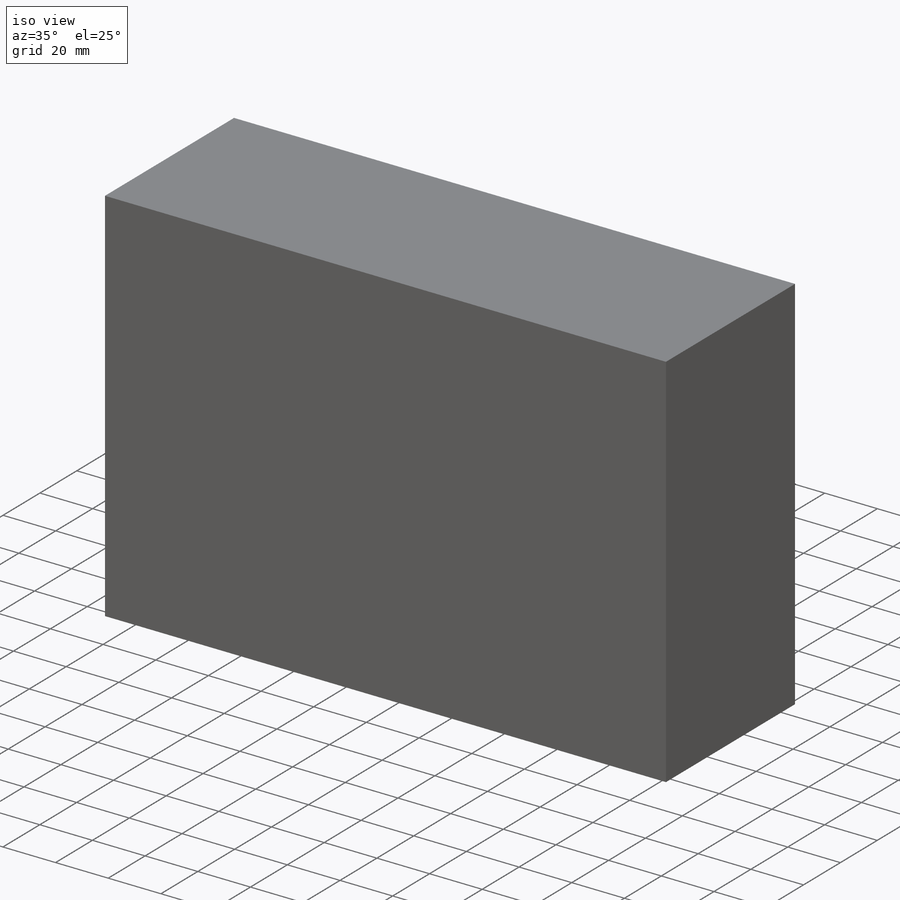
[diagram: iso view]
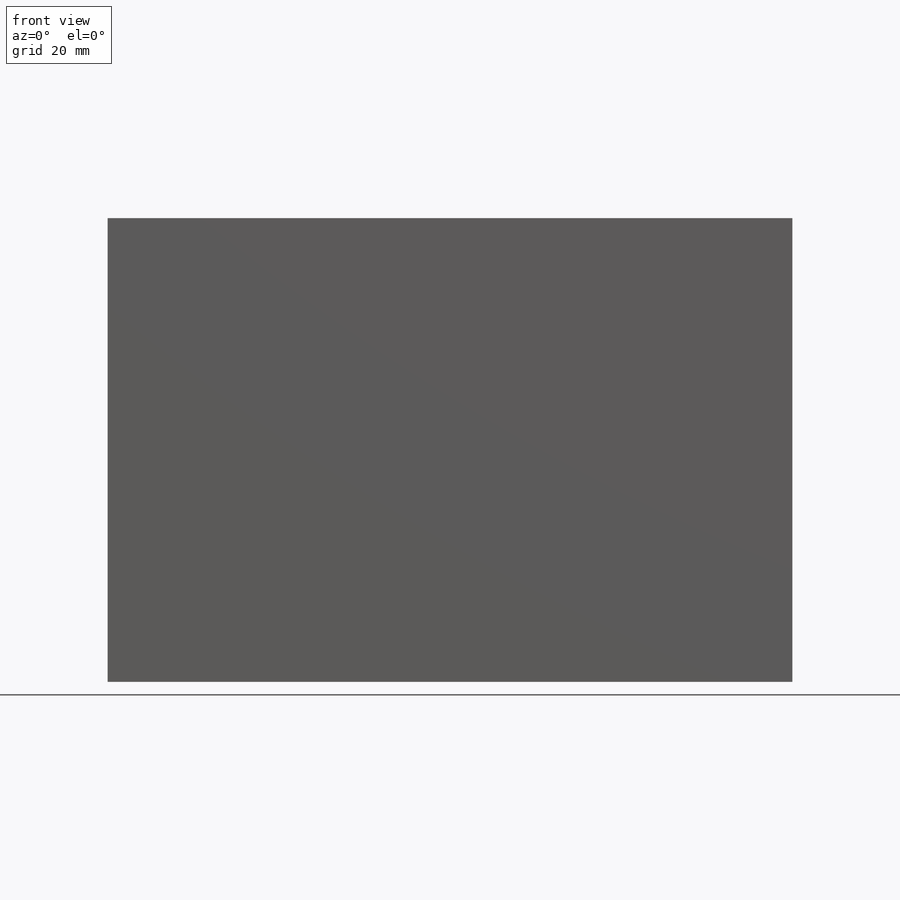
[diagram: front view]
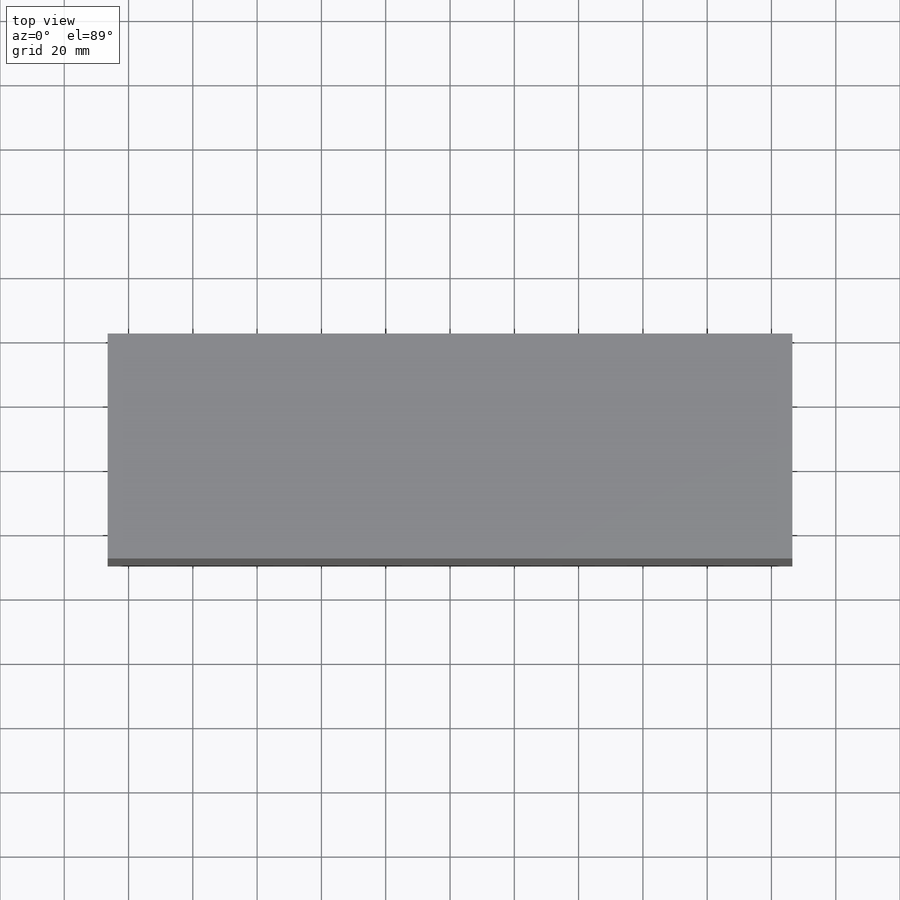
[diagram: top view]
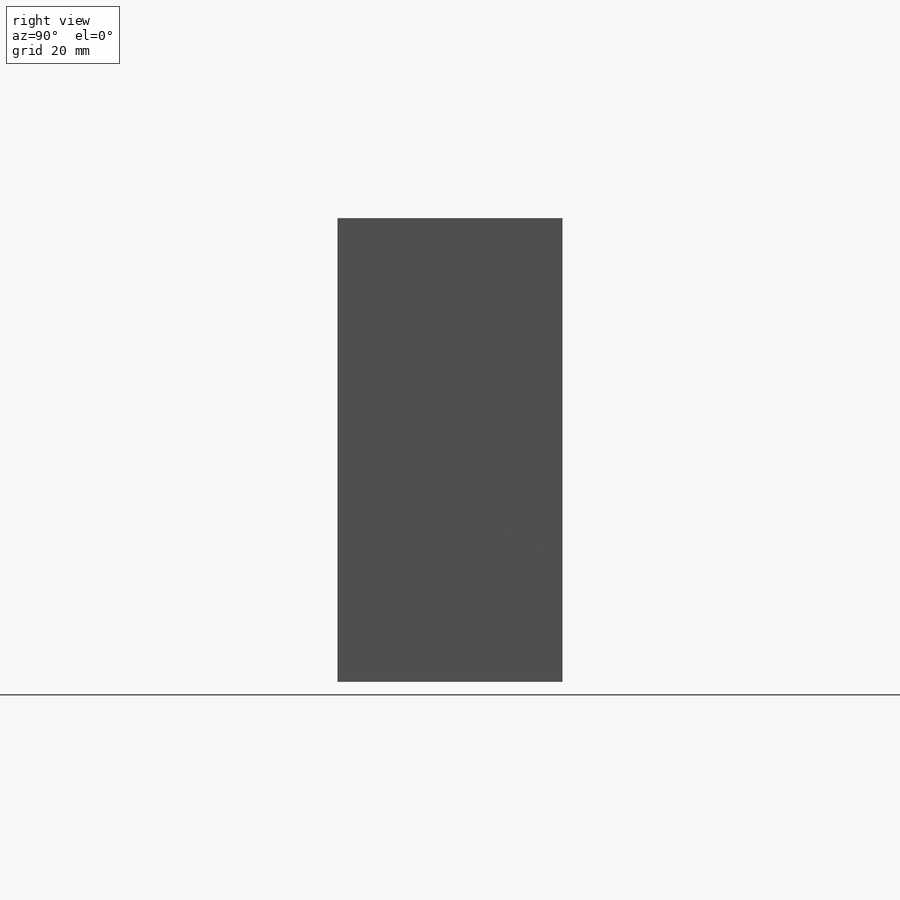
[diagram: right view]
SOLIDWORKS PART (.sldprt)
format: sldprt  version: not decoded by parser v0  size: 2,039,808 bytes
history: native  units: mm
features: sketch x11, fillet x9, cut_extrude x5, extrude x4, plane x3, material x1, revolve x1, shell x1 + 2 further entries (+9 scaffold rows collapsed; 1 parser-record rows omitted)
feature tree (47):
  scaffold x9  (default folders/planes/origin — collapsed)
  material  "PE High Density"
  "Maça Yüzeyi Gövdeleri"
  "Ayrım Yüzeyi Gövdeleri"
  plane  "Plane1"
  plane  "Plane2"
  plane  "Plane3"
  parser-record x1  (decoder bookkeeping rows leaked as tree rows — omitted from the tree; the rows remain in map.json)
  sketch  "Sketch1"  dims[D1=93.98mm D2=60.96mm]
  extrude  "body"  Depth=15.875mm
  sketch  "Sketch2"  dims[D1=33.02mm D2=63.5mm]
  revolve  "lens cavity"  Angle=180deg
  fillet  "Fillet1"  Radius=3.175mm
  fillet  "Fillet2"  Radius=12.7mm
  sketch  "Sketch3"  dims[D1=63.5mm D2=50.8mm]
  cut_extrude  "corner cut"  Depth=3.175mm
  fillet  "Fillet3"  Radius=9.525mm
  fillet  "Fillet4"  Radius=6.35mm
  sketch  "Sketch4"  dims[D3=63.5mm D1=6.35mm D2=25.4mm]
  extrude  "handle"  Depth=1.905mm
  fillet  "Fillet5"  Radius=6.35mm
  fillet  "Fillet6"  Radius=12.7mm
  fillet  "Fillet7"  Radius=6.35mm
  fillet  "Fillet8"  Radius=3.175mm
  sketch  "Sketch5"  dims[D1=3.048mm D2=~4.319576mm D3=3.048mm D4=2.794mm D5=2.794mm D6=7.62mm D7=4.445mm D8=8.128mm D9=10.16mm D10=10.16mm]
  cut_extrude  "view finder"  Depth=6.35mm
  fillet  "Fillet9"  Radius=2.54mm
  sketch  "Sketch6"
  cut_extrude  "aperture"  [1 undecoded]
  shell  "Shell1"  Thickness=1.016mm
  sketch  "Sketch7"
  extrude  "Boss-Extrude1"  Depth=3.175mm
  sketch  "Sketch8"  dims[D1=3.81mm D2=3.81mm D3=3.81mm D4=3.81mm D5=3.81mm D6=~32.346456mm D7=2.54mm D8=2.54mm D9=2.54mm D10=2.54mm D11=~2.547958mm D12=2.54mm D13=2.54mm D14=3.81mm]
  cut_extrude  "Cut-Extrude1"  Depth=0.762mm
  sketch  "Çizim2"
  cut_extrude  "Kes-Ekstrüzyon1"  Depth=38mm
  extrude  "Ayrım Hattı2"  Depth=100mm
  sketch  "Çizim3"  dims[D1=70.0mm D2=40.0mm D3=3.0deg]
  sketch  "Çizim4"
decode coverage: 26 of 31 modeling features carry decoded parameters; 2 rows unclassified (native names shown)
note: ~ marks probable driven/reference dimensions
note: 1 parameter value undecoded
note: suppression state not decoded; provenance and decode notes live in map.json
